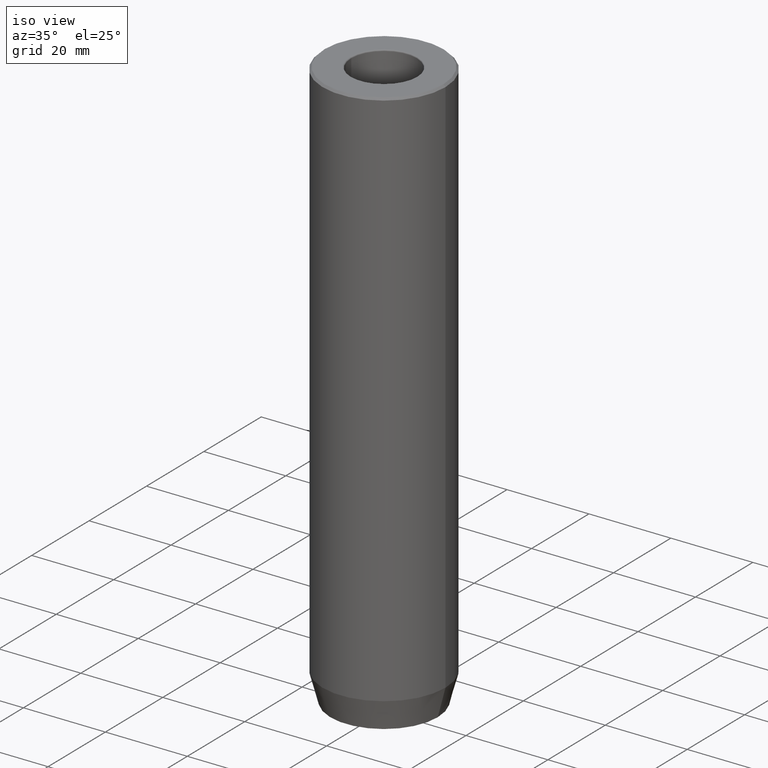
[diagram: clean part render]
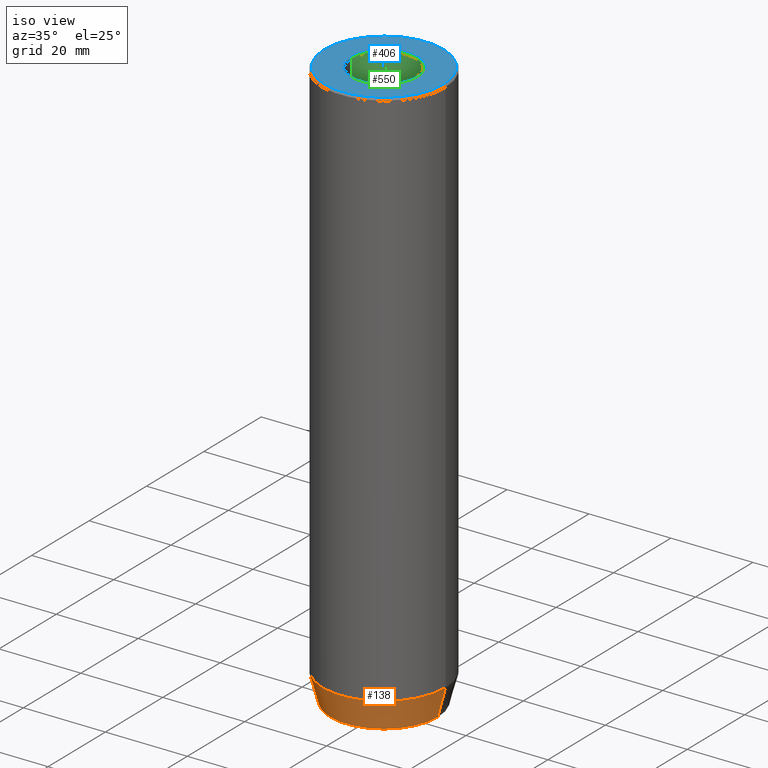
[diagram: same view with three faces highlighted in distinct colors, each labeled with its STEP entity id]
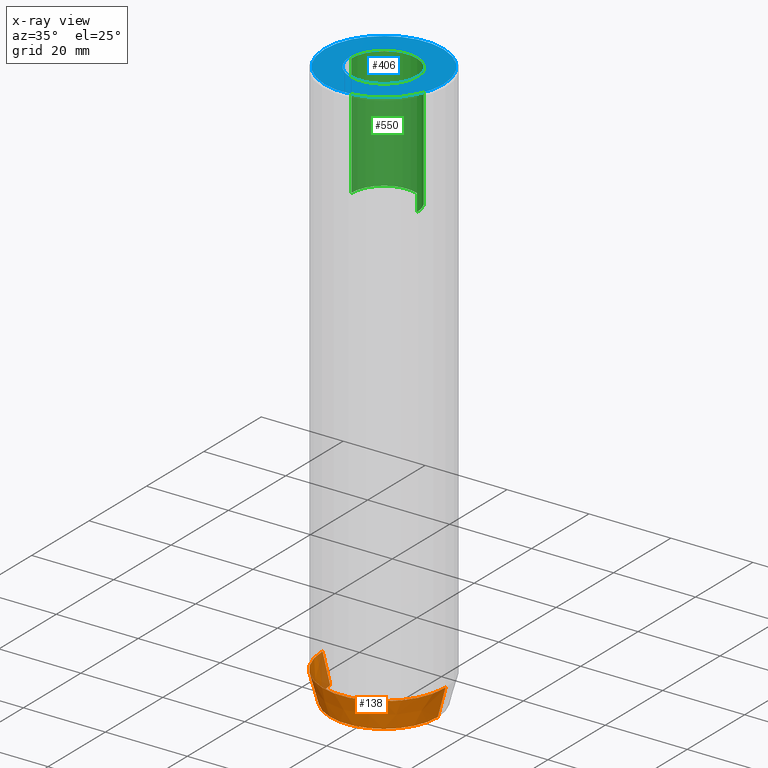
[diagram: x-ray of the same camera — body ghosted, the three highlighted faces saturated]
A machine part, iso view with three faces highlighted in distinct colors.
The next image is the same camera in x-ray (body ghosted, the three faces saturated) — at least one of them is partly hidden behind the body in this view.
Their STEP definitions:

[orange] entity #138 — the highlighted conical surface has half-angle 15 deg.
#17 = CARTESIAN_POINT ( 'NONE',  ( 15.00000000000000000, 0.000000000000000000, -133.0000000000000000 ) ) ;
#51 = EDGE_CURVE ( 'NONE', #174, #287, #259, .T. ) ;
#53 = CARTESIAN_POINT ( 'NONE',  ( -15.00000000000000000, 1.836970198721029589E-15, -133.0000000000000000 ) ) ;
#122 = CARTESIAN_POINT ( 'NONE',  ( 0.000000000000000000, 0.000000000000000000, -133.0000000000000000 ) ) ;
#138 = ADVANCED_FACE ( 'NONE', ( #417 ), #339, .T. ) ;
#141 = EDGE_LOOP ( 'NONE', ( #507, #280, #218, #301 ) ) ;
#160 = AXIS2_PLACEMENT_3D ( 'NONE', #177, #375, #571 ) ;
#162 = DIRECTION ( 'NONE',  ( -0.000000000000000000, -0.000000000000000000, 1.000000000000000000 ) ) ;
#174 = VERTEX_POINT ( 'NONE', #315 ) ;
#177 = CARTESIAN_POINT ( 'NONE',  ( 0.000000000000000000, 0.000000000000000000, -140.0000000000000000 ) ) ;
#202 = CIRCLE ( 'NONE', #563, 15.00000000000000000 ) ;
#218 = ORIENTED_EDGE ( 'NONE', *, *, #391, .T. ) ;
#238 = CARTESIAN_POINT ( 'NONE',  ( -15.00000000000000000, 1.836970198721029589E-15, -133.0000000000000000 ) ) ;
#242 = EDGE_CURVE ( 'NONE', #174, #608, #422, .T. ) ;
#259 = LINE ( 'NONE', #53, #636 ) ;
#280 = ORIENTED_EDGE ( 'NONE', *, *, #242, .T. ) ;
#287 = VERTEX_POINT ( 'NONE', #238 ) ;
#301 = ORIENTED_EDGE ( 'NONE', *, *, #578, .F. ) ;
#315 = CARTESIAN_POINT ( 'NONE',  ( -13.12435565298213369, 1.722120106425316888E-15, -140.0000000000000000 ) ) ;
#330 = VECTOR ( 'NONE', #344, 1000.000000000000000 ) ;
#332 = LINE ( 'NONE', #438, #330 ) ;
#339 = CONICAL_SURFACE ( 'NONE', #434, 15.00000000000000000, 0.2617993877991500740 ) ;
#344 = DIRECTION ( 'NONE',  ( 0.2588190451025213501, 0.000000000000000000, 0.9659258262890680902 ) ) ;
#375 = DIRECTION ( 'NONE',  ( -0.000000000000000000, -0.000000000000000000, 1.000000000000000000 ) ) ;
#391 = EDGE_CURVE ( 'NONE', #608, #580, #332, .T. ) ;
#413 = CARTESIAN_POINT ( 'NONE',  ( 0.000000000000000000, 0.000000000000000000, -133.0000000000000000 ) ) ;
#417 = FACE_OUTER_BOUND ( 'NONE', #141, .T. ) ;
#422 = CIRCLE ( 'NONE', #160, 13.12435565298213369 ) ;
#434 = AXIS2_PLACEMENT_3D ( 'NONE', #122, #519, #610 ) ;
#438 = CARTESIAN_POINT ( 'NONE',  ( 15.00000000000000000, 0.000000000000000000, -133.0000000000000000 ) ) ;
#468 = CARTESIAN_POINT ( 'NONE',  ( 13.12435565298213369, 0.000000000000000000, -140.0000000000000000 ) ) ;
#507 = ORIENTED_EDGE ( 'NONE', *, *, #51, .F. ) ;
#519 = DIRECTION ( 'NONE',  ( -0.000000000000000000, -0.000000000000000000, 1.000000000000000000 ) ) ;
#549 = DIRECTION ( 'NONE',  ( -0.2588190451025213501, 3.169619151431772337E-17, 0.9659258262890680902 ) ) ;
#560 = DIRECTION ( 'NONE',  ( 1.000000000000000000, 0.000000000000000000, 0.000000000000000000 ) ) ;
#563 = AXIS2_PLACEMENT_3D ( 'NONE', #413, #162, #560 ) ;
#571 = DIRECTION ( 'NONE',  ( 1.000000000000000000, 0.000000000000000000, 0.000000000000000000 ) ) ;
#578 = EDGE_CURVE ( 'NONE', #287, #580, #202, .T. ) ;
#580 = VERTEX_POINT ( 'NONE', #17 ) ;
#608 = VERTEX_POINT ( 'NONE', #468 ) ;
#610 = DIRECTION ( 'NONE',  ( 1.000000000000000000, 0.000000000000000000, 0.000000000000000000 ) ) ;
#636 = VECTOR ( 'NONE', #549, 1000.000000000000000 ) ;

[blue] entity #406 — the highlighted planar face has unit normal (0, -0, 1).
#1 = ORIENTED_EDGE ( 'NONE', *, *, #352, .T. ) ;
#36 = FACE_OUTER_BOUND ( 'NONE', #78, .T. ) ;
#44 = CARTESIAN_POINT ( 'NONE',  ( -14.50000000000001066, 0.000000000000000000, 0.000000000000000000 ) ) ;
#58 = AXIS2_PLACEMENT_3D ( 'NONE', #149, #206, #600 ) ;
#73 = EDGE_CURVE ( 'NONE', #627, #362, #503, .T. ) ;
#78 = EDGE_LOOP ( 'NONE', ( #568, #606 ) ) ;
#106 = DIRECTION ( 'NONE',  ( -0.000000000000000000, -0.000000000000000000, 1.000000000000000000 ) ) ;
#110 = AXIS2_PLACEMENT_3D ( 'NONE', #529, #290, #386 ) ;
#117 = DIRECTION ( 'NONE',  ( 1.000000000000000000, 0.000000000000000000, 0.000000000000000000 ) ) ;
#136 = DIRECTION ( 'NONE',  ( 1.000000000000000000, 0.000000000000000000, 0.000000000000000000 ) ) ;
#149 = CARTESIAN_POINT ( 'NONE',  ( 0.000000000000000000, 0.000000000000000000, 0.000000000000000000 ) ) ;
#156 = CARTESIAN_POINT ( 'NONE',  ( 0.000000000000000000, 0.000000000000000000, 0.000000000000000000 ) ) ;
#167 = CARTESIAN_POINT ( 'NONE',  ( 14.50000000000001066, 1.806354028742346591E-15, 0.000000000000000000 ) ) ;
#178 = ORIENTED_EDGE ( 'NONE', *, *, #520, .T. ) ;
#183 = CARTESIAN_POINT ( 'NONE',  ( 0.000000000000000000, 0.000000000000000000, 0.000000000000000000 ) ) ;
#194 = EDGE_CURVE ( 'NONE', #362, #627, #604, .T. ) ;
#206 = DIRECTION ( 'NONE',  ( 0.000000000000000000, 0.000000000000000000, -1.000000000000000000 ) ) ;
#213 = EDGE_LOOP ( 'NONE', ( #178, #1 ) ) ;
#234 = AXIS2_PLACEMENT_3D ( 'NONE', #517, #476, #117 ) ;
#240 = CARTESIAN_POINT ( 'NONE',  ( 8.299999999999997158, 0.000000000000000000, 0.000000000000000000 ) ) ;
#253 = CARTESIAN_POINT ( 'NONE',  ( -8.299999999999997158, 1.016456843292302637E-15, 0.000000000000000000 ) ) ;
#288 = AXIS2_PLACEMENT_3D ( 'NONE', #156, #106, #552 ) ;
#290 = DIRECTION ( 'NONE',  ( 0.000000000000000000, 0.000000000000000000, -1.000000000000000000 ) ) ;
#352 = EDGE_CURVE ( 'NONE', #457, #396, #390, .T. ) ;
#362 = VERTEX_POINT ( 'NONE', #44 ) ;
#386 = DIRECTION ( 'NONE',  ( 1.000000000000000000, 0.000000000000000000, 0.000000000000000000 ) ) ;
#390 = CIRCLE ( 'NONE', #110, 8.299999999999997158 ) ;
#396 = VERTEX_POINT ( 'NONE', #240 ) ;
#406 = ADVANCED_FACE ( 'NONE', ( #432, #36 ), #629, .T. ) ;
#423 = AXIS2_PLACEMENT_3D ( 'NONE', #183, #489, #136 ) ;
#432 = FACE_BOUND ( 'NONE', #213, .T. ) ;
#457 = VERTEX_POINT ( 'NONE', #253 ) ;
#476 = DIRECTION ( 'NONE',  ( -0.000000000000000000, -0.000000000000000000, 1.000000000000000000 ) ) ;
#489 = DIRECTION ( 'NONE',  ( 0.000000000000000000, -0.000000000000000000, 1.000000000000000000 ) ) ;
#503 = CIRCLE ( 'NONE', #288, 14.50000000000001066 ) ;
#517 = CARTESIAN_POINT ( 'NONE',  ( 0.000000000000000000, 0.000000000000000000, 0.000000000000000000 ) ) ;
#520 = EDGE_CURVE ( 'NONE', #396, #457, #553, .T. ) ;
#529 = CARTESIAN_POINT ( 'NONE',  ( 0.000000000000000000, 0.000000000000000000, 0.000000000000000000 ) ) ;
#552 = DIRECTION ( 'NONE',  ( 1.000000000000000000, 0.000000000000000000, 0.000000000000000000 ) ) ;
#553 = CIRCLE ( 'NONE', #58, 8.299999999999997158 ) ;
#568 = ORIENTED_EDGE ( 'NONE', *, *, #194, .T. ) ;
#600 = DIRECTION ( 'NONE',  ( 1.000000000000000000, 0.000000000000000000, 0.000000000000000000 ) ) ;
#604 = CIRCLE ( 'NONE', #234, 14.50000000000001066 ) ;
#606 = ORIENTED_EDGE ( 'NONE', *, *, #73, .T. ) ;
#627 = VERTEX_POINT ( 'NONE', #167 ) ;
#629 = PLANE ( 'NONE',  #423 ) ;

[green] entity #550 — the highlighted cylindrical surface (partial cylindrical patch) has radius 8 mm, axis along (-0, -0, 1).
#26 = VECTOR ( 'NONE', #84, 1000.000000000000000 ) ;
#41 = CARTESIAN_POINT ( 'NONE',  ( 7.999999999999996447, 0.000000000000000000, -0.2999999999999999889 ) ) ;
#47 = AXIS2_PLACEMENT_3D ( 'NONE', #355, #300, #602 ) ;
#76 = CARTESIAN_POINT ( 'NONE',  ( 0.000000000000000000, 0.000000000000000000, -30.00000000000000000 ) ) ;
#84 = DIRECTION ( 'NONE',  ( -0.000000000000000000, -0.000000000000000000, 1.000000000000000000 ) ) ;
#86 = CARTESIAN_POINT ( 'NONE',  ( -7.999999999999996447, 9.797174393178821713E-16, 0.000000000000000000 ) ) ;
#94 = ORIENTED_EDGE ( 'NONE', *, *, #447, .T. ) ;
#95 = LINE ( 'NONE', #86, #26 ) ;
#125 = VERTEX_POINT ( 'NONE', #425 ) ;
#128 = CARTESIAN_POINT ( 'NONE',  ( 7.999999999999994671, 0.000000000000000000, -30.00000000000000000 ) ) ;
#129 = EDGE_CURVE ( 'NONE', #246, #415, #621, .T. ) ;
#132 = CIRCLE ( 'NONE', #575, 7.999999999999994671 ) ;
#158 = CARTESIAN_POINT ( 'NONE',  ( 0.000000000000000000, 0.000000000000000000, -0.2999999999999999889 ) ) ;
#180 = CARTESIAN_POINT ( 'NONE',  ( 7.999999999999996447, 0.000000000000000000, 0.000000000000000000 ) ) ;
#246 = VERTEX_POINT ( 'NONE', #128 ) ;
#300 = DIRECTION ( 'NONE',  ( -0.000000000000000000, -0.000000000000000000, 1.000000000000000000 ) ) ;
#305 = DIRECTION ( 'NONE',  ( 1.000000000000000000, 0.000000000000000000, 0.000000000000000000 ) ) ;
#311 = FACE_OUTER_BOUND ( 'NONE', #389, .T. ) ;
#340 = EDGE_CURVE ( 'NONE', #125, #488, #95, .T. ) ;
#350 = CYLINDRICAL_SURFACE ( 'NONE', #47, 7.999999999999996447 ) ;
#355 = CARTESIAN_POINT ( 'NONE',  ( 0.000000000000000000, 0.000000000000000000, 0.000000000000000000 ) ) ;
#389 = EDGE_LOOP ( 'NONE', ( #616, #498, #559, #94 ) ) ;
#415 = VERTEX_POINT ( 'NONE', #41 ) ;
#425 = CARTESIAN_POINT ( 'NONE',  ( -7.999999999999994671, 9.797174393178819741E-16, -30.00000000000000000 ) ) ;
#447 = EDGE_CURVE ( 'NONE', #415, #488, #637, .T. ) ;
#461 = DIRECTION ( 'NONE',  ( 1.000000000000000000, 0.000000000000000000, 0.000000000000000000 ) ) ;
#488 = VERTEX_POINT ( 'NONE', #548 ) ;
#498 = ORIENTED_EDGE ( 'NONE', *, *, #633, .F. ) ;
#508 = DIRECTION ( 'NONE',  ( -0.000000000000000000, -0.000000000000000000, 1.000000000000000000 ) ) ;
#514 = DIRECTION ( 'NONE',  ( -0.000000000000000000, -0.000000000000000000, 1.000000000000000000 ) ) ;
#515 = AXIS2_PLACEMENT_3D ( 'NONE', #158, #508, #305 ) ;
#548 = CARTESIAN_POINT ( 'NONE',  ( -7.999999999999996447, 9.797174393178821713E-16, -0.2999999999999999889 ) ) ;
#550 = ADVANCED_FACE ( 'NONE', ( #311 ), #350, .F. ) ;
#559 = ORIENTED_EDGE ( 'NONE', *, *, #129, .T. ) ;
#575 = AXIS2_PLACEMENT_3D ( 'NONE', #76, #612, #461 ) ;
#602 = DIRECTION ( 'NONE',  ( 1.000000000000000000, 0.000000000000000000, 0.000000000000000000 ) ) ;
#612 = DIRECTION ( 'NONE',  ( -0.000000000000000000, -0.000000000000000000, 1.000000000000000000 ) ) ;
#613 = VECTOR ( 'NONE', #514, 1000.000000000000000 ) ;
#616 = ORIENTED_EDGE ( 'NONE', *, *, #340, .F. ) ;
#621 = LINE ( 'NONE', #180, #613 ) ;
#633 = EDGE_CURVE ( 'NONE', #246, #125, #132, .T. ) ;
#637 = CIRCLE ( 'NONE', #515, 7.999999999999996447 ) ;